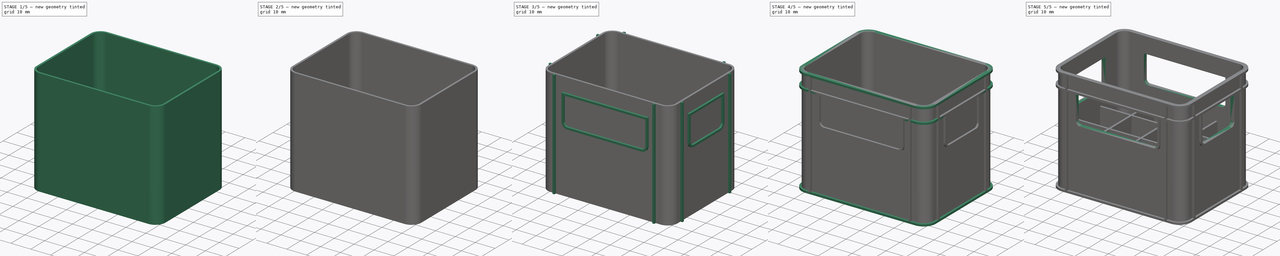
[diagram: build sequence overview — one tinted view per stage of 5, left to right]
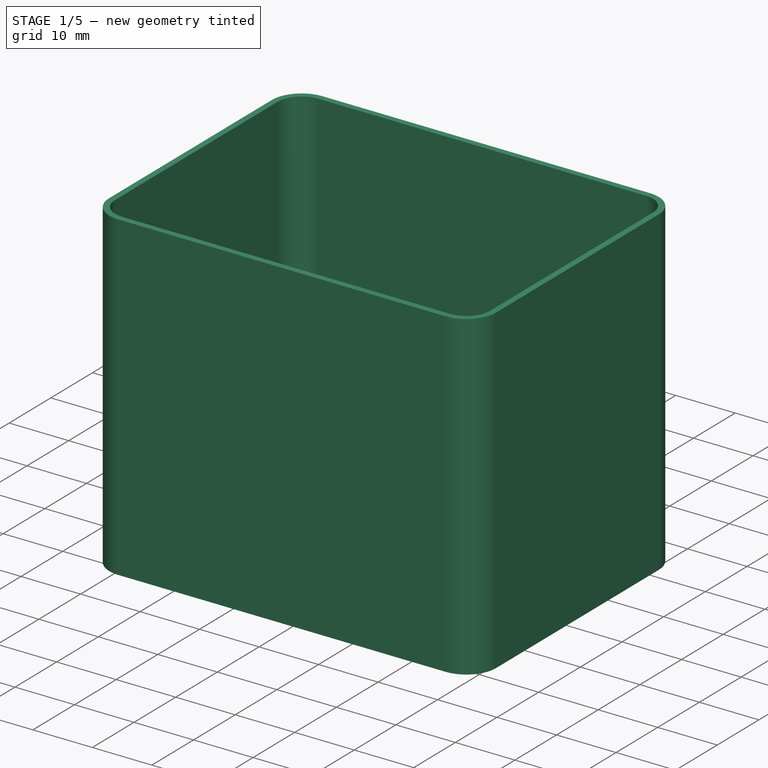
[diagram: stage 1 of 5 — iso view after this stage's code; geometry added in this stage tinted green]
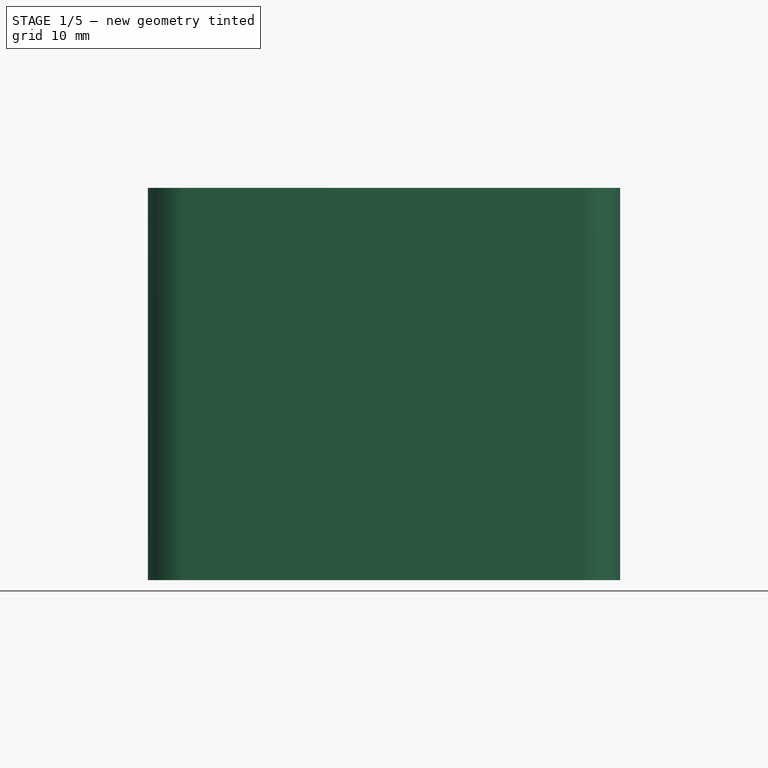
[diagram: stage 1 of 5 — front view after this stage's code; geometry added in this stage tinted green]
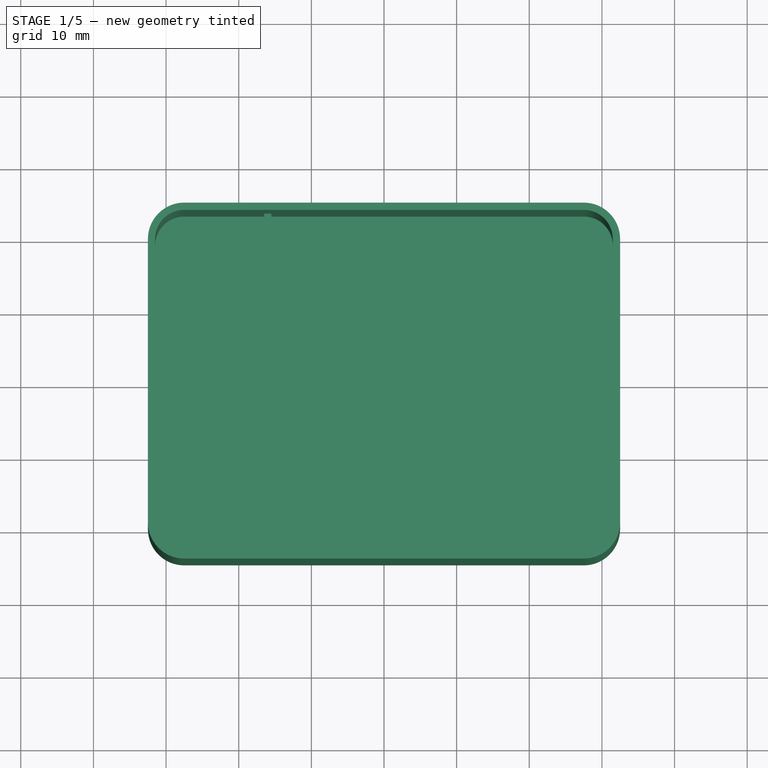
[diagram: stage 1 of 5 — top view after this stage's code; geometry added in this stage tinted green]
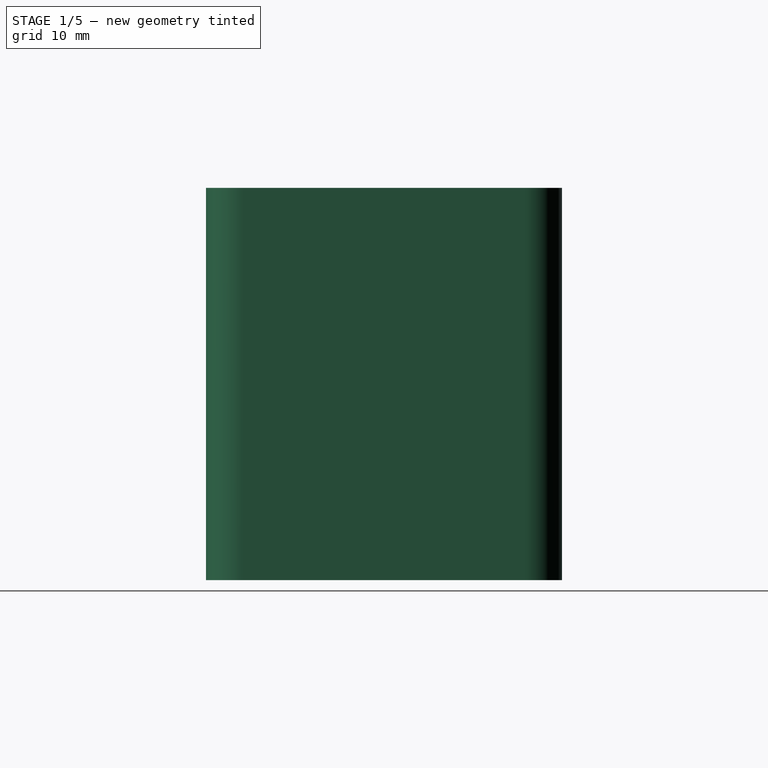
[diagram: stage 1 of 5 — right view after this stage's code; geometry added in this stage tinted green]
FCSTD DOCUMENT  (FreeCAD 0.20R25552 +3 (Git))
Label: AA-Kiste
License: All rights reserved
LicenseURL: http://en.wikipedia.org/wiki/All_rights_reserved
objects: Sketcher::SketchObject×9, PartDesign::Pad×7, PartDesign::LinearPattern×4, PartDesign::Mirrored×2, PartDesign::Pocket×2, PartDesign::Thickness×1, PartDesign::Body×1, Spreadsheet::Sheet×1
note: 36 computed .brp shape members not serialized (recipe doc carries the construction recipe); baked Part::Feature solids carry a one-line shape summary decoded from their .brp

FEATURE [Sketcher::SketchObject] Sketch  label="Sk Master"
  FullyConstrained = true
  MapMode = 5
  Support = -> [XY_Plane]
  sketch-geometry (12):
    g0: LineSegment StartX=-27.5 StartY=-24.5 StartZ=0 EndX=27.5 EndY=-24.5 EndZ=0
    g1: LineSegment StartX=32.5 StartY=-19.5 StartZ=0 EndX=32.5 EndY=19.5 EndZ=0
    g2: LineSegment StartX=27.5 StartY=24.5 StartZ=0 EndX=-27.5 EndY=24.5 EndZ=0
    g3: LineSegment StartX=-32.5 StartY=19.5 StartZ=0 EndX=-32.5 EndY=-19.5 EndZ=0
    g4: ArcOfCircle CenterX=-27.5 CenterY=19.5 CenterZ=0 NormalX=0 NormalY=0 NormalZ=1 AngleXU=0 Radius=5 StartAngle=1.5708 EndAngle=3.14159
    g5: GeomPoint X=-32.5 Y=24.5 Z=0
    g6: ArcOfCircle CenterX=27.5 CenterY=19.5 CenterZ=0 NormalX=0 NormalY=0 NormalZ=1 AngleXU=0 Radius=5 StartAngle=3e-16 EndAngle=1.5708
    g7: GeomPoint X=32.5 Y=24.5 Z=0
    g8: ArcOfCircle CenterX=27.5 CenterY=-19.5 CenterZ=0 NormalX=0 NormalY=0 NormalZ=1 AngleXU=0 Radius=5 StartAngle=4.71239 EndAngle=6.28319
    g9: GeomPoint X=32.5 Y=-24.5 Z=0
    g10: ArcOfCircle CenterX=-27.5 CenterY=-19.5 CenterZ=0 NormalX=0 NormalY=0 NormalZ=1 AngleXU=0 Radius=5 StartAngle=3.14159 EndAngle=4.71239
    g11: GeomPoint X=-32.5 Y=-24.5 Z=0
  constraints (27):
    c: Horizontal(g0)
    c: Horizontal(g2)
    c: Vertical(g1)
    c: Vertical(g3)
    c: PointOnObject(g5,g2)
    c: PointOnObject(g5,g3)
    c: Tangent(g2,g4) = -1.5708
    c: Tangent(g3,g4) = -1.5708
    c: PointOnObject(g7,g1)
    c: PointOnObject(g7,g2)
    c: Tangent(g1,g6) = -1.5708
    c: Tangent(g2,g6) = -1.5708
    c: PointOnObject(g9,g0)
    c: PointOnObject(g9,g1)
    c: Tangent(g0,g8) = -1.5708
    c: Tangent(g1,g8) = -1.5708
    c: PointOnObject(g11,g0)
    c: PointOnObject(g11,g3)
    c: Tangent(g0,g10) = -1.5708
    c: Tangent(g3,g10) = -1.5708
    c: Equal(g10,g4)
    c: Equal(g4,g6)
    c: Equal(g6,g8)
    c: Radius(g6) = 5
    c: Symmetric(g10,g6,g-1)
    c: DistanceX(g11,g9) = 65  'width'
    c: DistanceY(g11,g5) = 49  'depth'
FEATURE [PartDesign::Pad] Pad
  Direction = (0,0,1)
  Length = 54
  Length2 = 100
  Profile = -> Sketch
  Refine = true
  Type = 0
FEATURE [PartDesign::Thickness] Thickness
  Base = -> Pad [Face10]
  BaseFeature = -> Pad
  Intersection = false
  Join = 0
  Mode = 0
  Refine = true
  Reversed = true
  SupportTransform = false
  Value = 1
FEATURE [Sketcher::SketchObject] Sketch001  label="Sk Wand y"
  ExternalGeometry = -> [Sketch]
  FullyConstrained = true
  MapMode = 5
  Support = -> [XY_Plane]
  expr: Constraints[8] = <<Sk Master>>.Constraints.depth
  expr: Constraints[10] = <<Parameter>>.offset_x
  sketch-geometry (4):
    g0: LineSegment StartX=-16.5 StartY=24.5 StartZ=0 EndX=-15.5 EndY=24.5 EndZ=0
    g1: LineSegment StartX=-15.5 StartY=24.5 StartZ=0 EndX=-15.5 EndY=-24.5 EndZ=0
    g2: LineSegment StartX=-15.5 StartY=-24.5 StartZ=0 EndX=-16.5 EndY=-24.5 EndZ=0
    g3: LineSegment StartX=-16.5 StartY=-24.5 StartZ=0 EndX=-16.5 EndY=24.5 EndZ=0
  constraints (11):
    c: Coincident(g0,g1)
    c: Coincident(g1,g2)
    c: Coincident(g2,g3)
    c: Coincident(g3,g0)
    c: Horizontal(g0)
    c: Horizontal(g2)
    c: Vertical(g3)
    c: DistanceX(g2,g2) = 1
    c: DistanceY(g3,g3) = 49
    c: Symmetric(g0,g1,g-1)
    c: DistanceX(g-4,g2) = 16
FEATURE [PartDesign::Pad] Pad001  label="Wand y"
  BaseFeature = -> Thickness
  Direction = (0,0,1)
  Length = 25
  Length2 = 100
  Profile = -> Sketch001
  Refine = true
  Type = 0
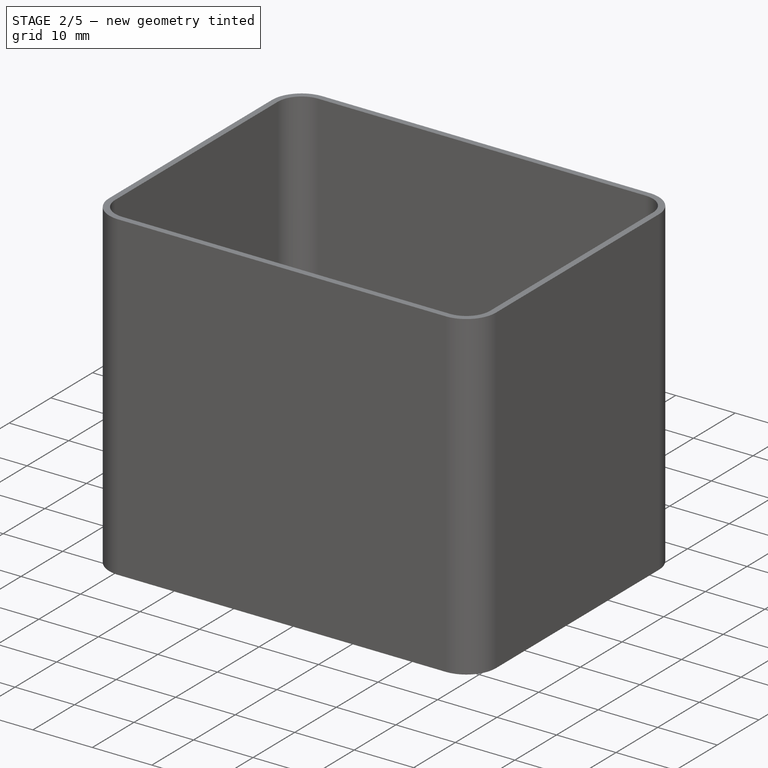
[diagram: stage 2 of 5 — iso view after this stage's code; geometry added in this stage tinted green]
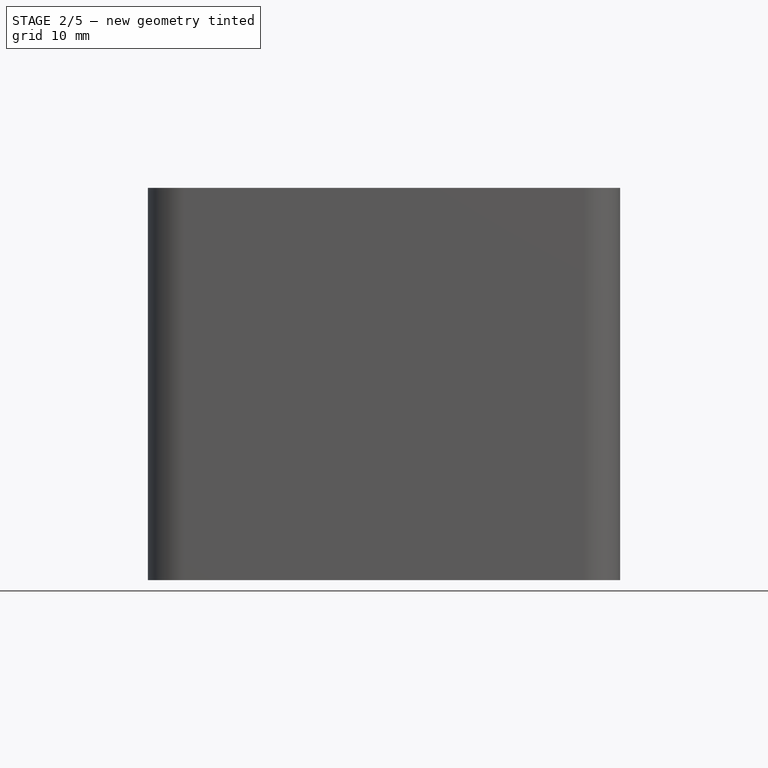
[diagram: stage 2 of 5 — front view after this stage's code; geometry added in this stage tinted green]
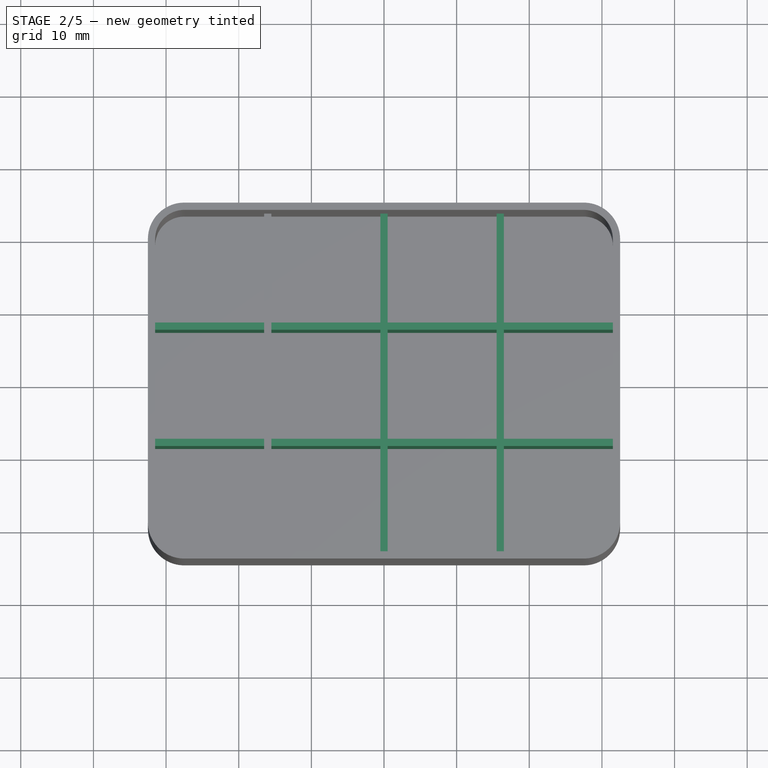
[diagram: stage 2 of 5 — top view after this stage's code; geometry added in this stage tinted green]
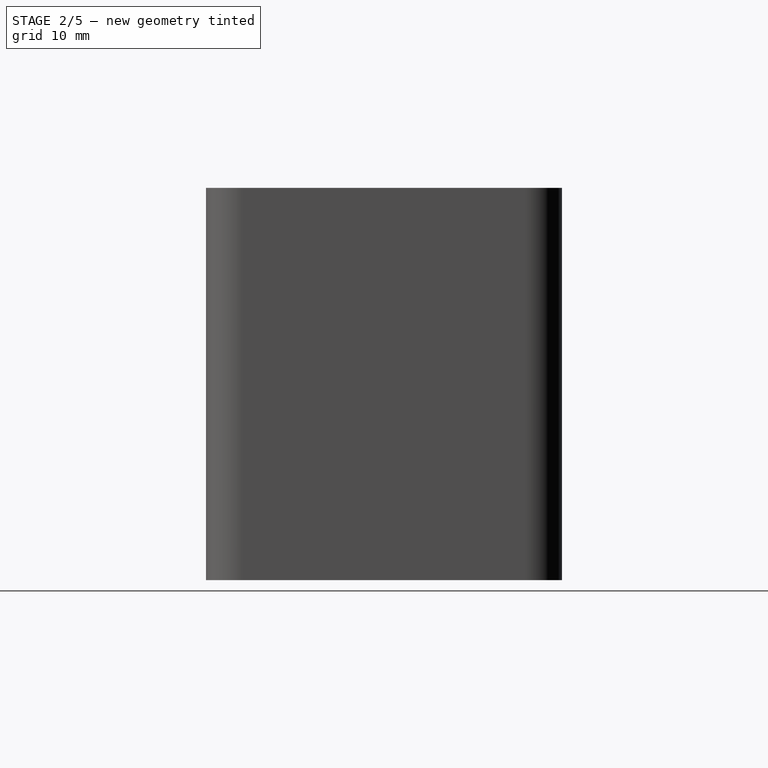
[diagram: stage 2 of 5 — right view after this stage's code; geometry added in this stage tinted green]
FEATURE [PartDesign::LinearPattern] LinearPattern
  BaseFeature = -> Pad001
  Direction = -> Sketch001 [H_Axis]
  Length = 32
  Occurrences = 3
  Originals = -> [Pad001]
  Overlap = 0
  Refine = true
  expr: Length = <<Parameter>>.offset_x * (<<Parameter>>.num_x - 2)
  expr: Occurrences = <<Parameter>>.num_x - 1
FEATURE [Sketcher::SketchObject] Sketch002  label="Sk Wand x"
  ExternalGeometry = -> [Sketch]
  FullyConstrained = true
  MapMode = 5
  Support = -> [XY_Plane]
  expr: Constraints[7] = Sketch.Constraints.width
  expr: Constraints[9] = <<Parameter>>.offset_y
  sketch-geometry (4):
    g0: LineSegment StartX=-32.5 StartY=-7.5 StartZ=0 EndX=32.5 EndY=-7.5 EndZ=0
    g1: LineSegment StartX=32.5 StartY=-7.5 StartZ=0 EndX=32.5 EndY=-8.5 EndZ=0
    g2: LineSegment StartX=32.5 StartY=-8.5 StartZ=0 EndX=-32.5 EndY=-8.5 EndZ=0
    g3: LineSegment StartX=-32.5 StartY=-8.5 StartZ=0 EndX=-32.5 EndY=-7.5 EndZ=0
  constraints (11):
    c: Coincident(g0,g1)
    c: Coincident(g1,g2)
    c: Coincident(g2,g3)
    c: Coincident(g3,g0)
    c: Horizontal(g2)
    c: Vertical(g1)
    c: Vertical(g3)
    c: DistanceX(g2,g2) = 65
    c: DistanceY(g1,g1) = 1
    c: DistanceY(g-3,g2) = 16
    c: Symmetric(g0,g0,g-2)
FEATURE [PartDesign::Pad] Pad002  label="Wand x"
  BaseFeature = -> LinearPattern
  Direction = (0,0,1)
  Length = 25
  Length2 = 100
  Profile = -> Sketch002
  Refine = true
  Type = 0
  expr: Length = <<Wand y>>.Length
FEATURE [PartDesign::LinearPattern] LinearPattern001
  BaseFeature = -> Pad002
  Direction = -> Y_Axis
  Length = 16
  Occurrences = 2
  Originals = -> [Pad002]
  Overlap = 0
  Refine = true
  expr: Length = <<Parameter>>.offset_y * (<<Parameter>>.num_y - 2)
  expr: Occurrences = <<Parameter>>.num_y - 1
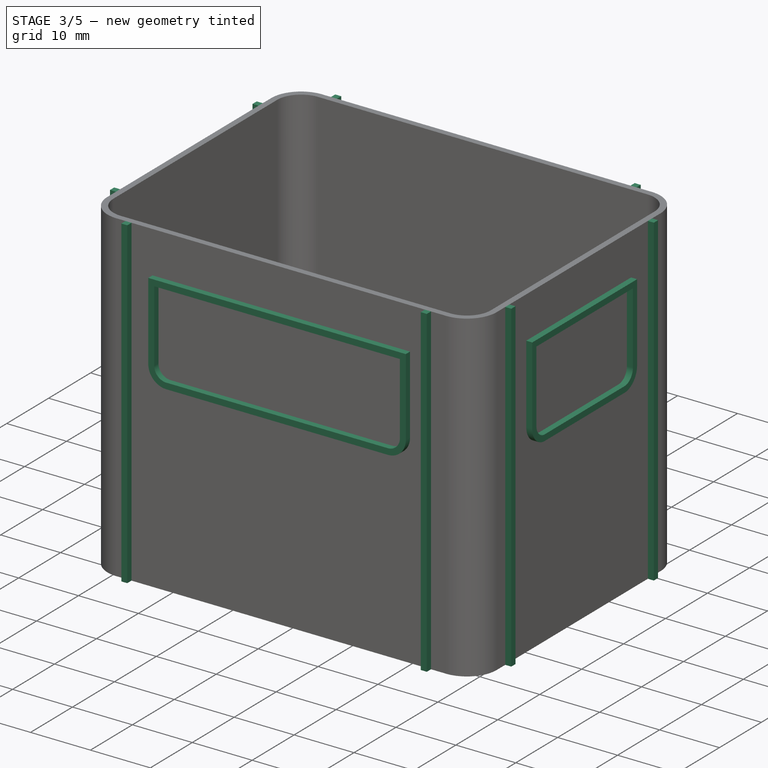
[diagram: stage 3 of 5 — iso view after this stage's code; geometry added in this stage tinted green]
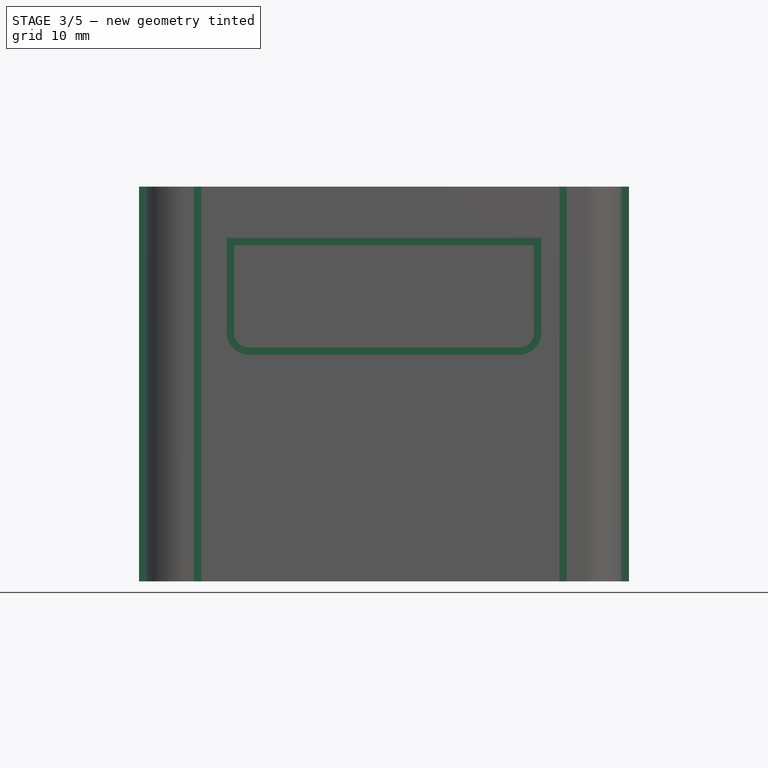
[diagram: stage 3 of 5 — front view after this stage's code; geometry added in this stage tinted green]
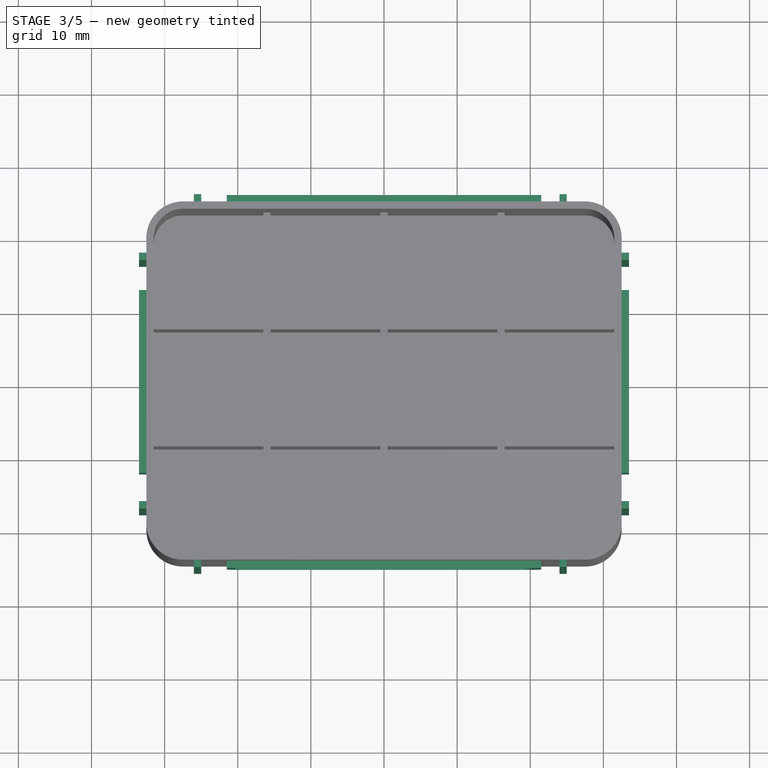
[diagram: stage 3 of 5 — top view after this stage's code; geometry added in this stage tinted green]
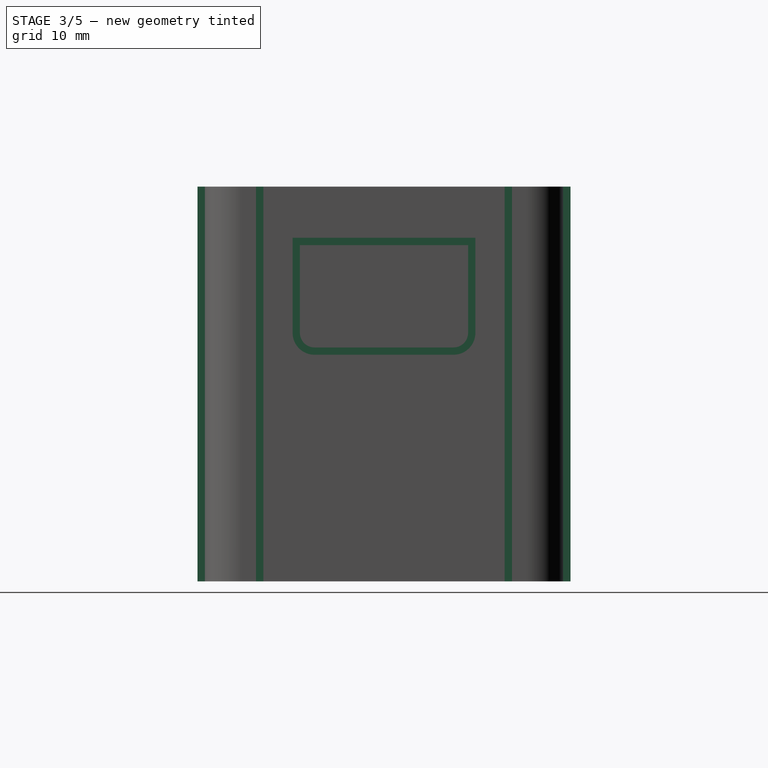
[diagram: stage 3 of 5 — right view after this stage's code; geometry added in this stage tinted green]
FEATURE [Sketcher::SketchObject] Sketch003  label="Sk Deko breite"
  FullyConstrained = true
  MapMode = 5
  Placement = pos=(0,-24.5,0) rot=(1,0,0;1.5708rad)
  Support = -> [Pad]
  expr: Constraints[20] = <<Pad>>.Length
  expr: Constraints[22] = <<Parameter>>.width - 14mm
  expr: .Constraints.width = <<Parameter>>.width - 14mm - 10mm
  sketch-geometry (20):
    g0: LineSegment StartX=-26 StartY=54 StartZ=0 EndX=-25 EndY=54 EndZ=0
    g1: LineSegment StartX=-25 StartY=54 StartZ=0 EndX=-25 EndY=0 EndZ=0
    g2: LineSegment StartX=-25 StartY=0 StartZ=0 EndX=-26 EndY=0 EndZ=0
    g3: LineSegment StartX=-26 StartY=0 StartZ=0 EndX=-26 EndY=54 EndZ=0
    g4: LineSegment StartX=25 StartY=54 StartZ=0 EndX=24 EndY=54 EndZ=0
    g5: LineSegment StartX=24 StartY=54 StartZ=0 EndX=24 EndY=0 EndZ=0
    g6: LineSegment StartX=24 StartY=0 StartZ=0 EndX=25 EndY=0 EndZ=0
    g7: LineSegment StartX=25 StartY=0 StartZ=0 EndX=25 EndY=54 EndZ=0
    g8: LineSegment StartX=-21.5 StartY=47 StartZ=0 EndX=21.5 EndY=47 EndZ=0
    g9: LineSegment StartX=21.5 StartY=47 StartZ=0 EndX=21.5 EndY=34 EndZ=0
    g10: LineSegment StartX=18.5 StartY=31 StartZ=0 EndX=-18.5 EndY=31 EndZ=0
    g11: LineSegment StartX=-21.5 StartY=34 StartZ=0 EndX=-21.5 EndY=47 EndZ=0
    g12: LineSegment StartX=-20.5 StartY=46 StartZ=0 EndX=20.5 EndY=46 EndZ=0
    g13: LineSegment StartX=20.5 StartY=46 StartZ=0 EndX=20.5 EndY=34 EndZ=0
    g14: LineSegment StartX=18.5 StartY=32 StartZ=0 EndX=-18.5 EndY=32 EndZ=0
    g15: LineSegment StartX=-20.5 StartY=34 StartZ=0 EndX=-20.5 EndY=46 EndZ=0
    g16: ArcOfCircle CenterX=-18.5 CenterY=34 CenterZ=0 NormalX=0 NormalY=0 NormalZ=1 AngleXU=0 Radius=2 StartAngle=3.14159 EndAngle=4.71239
    g17: ArcOfCircle CenterX=-18.5 CenterY=34 CenterZ=0 NormalX=0 NormalY=0 NormalZ=1 AngleXU=0 Radius=3 StartAngle=3.14159 EndAngle=4.71239
    g18: ArcOfCircle CenterX=18.5 CenterY=34 CenterZ=0 NormalX=0 NormalY=0 NormalZ=1 AngleXU=0 Radius=2 StartAngle=4.71239 EndAngle=6.28319
    g19: ArcOfCircle CenterX=18.5 CenterY=34 CenterZ=0 NormalX=0 NormalY=0 NormalZ=1 AngleXU=0 Radius=3 StartAngle=4.71239 EndAngle=6.28319
  constraints (52):
    c: Coincident(g0,g1)
    c: Coincident(g1,g2)
    c: Coincident(g2,g3)
    c: Coincident(g3,g0)
    c: Horizontal(g0)
    c: Horizontal(g2)
    c: Vertical(g1)
    c: Vertical(g3)
    c: PointOnObject(g1,g-1)
    c: Coincident(g4,g5)
    c: Coincident(g5,g6)
    c: Coincident(g6,g7)
    c: Coincident(g7,g4)
    c: Horizontal(g4)
    c: Horizontal(g6)
    c: Vertical(g5)
    c: Vertical(g7)
    c: Symmetric(g1,g6,g-1)
    c: Equal(g6,g2)
    c: DistanceX(g2,g2) = 1
    c: DistanceY(g3,g3) = 54
    c: Equal(g1,g7)
    c: DistanceX(g2,g6) = 51
    c: Horizontal(g8)
    c: Horizontal(g10)
    c: Vertical(g9)
    c: Vertical(g11)
    c: Horizontal(g12)
    c: Vertical(g13)
    c: Tangent(g14,g16) = 1.5708
    c: Tangent(g15,g16) = 1.5708
    c: Tangent(g10,g17) = 1.5708
    c: Tangent(g11,g17) = 1.5708
    c: Tangent(g13,g18) = 1.5708
    c: Tangent(g14,g18) = 1.5708
    c: Tangent(g9,g19) = 1.5708
    c: Tangent(g10,g19) = 1.5708
    c: Coincident(g18,g19)
    c: Coincident(g16,g17)
    c: Equal(g18,g16)
    c: Radius(g16) = 2
    c: DistanceX(g11,g15) = 1
    c: DistanceY(g14,g12) = 14  'height'
    c: DistanceX(g15,g13) = 41  'width'
    c: Symmetric(g14,g14,g-2)
    c: DistanceY(g-1,g12) = 46  'upper'
    c: Coincident(g15,g12)
    c: Vertical(g15)
    c: Coincident(g11,g8)
    c: Coincident(g12,g13)
    c: Coincident(g8,g9)
    c: DistanceY(g12,g8) = 1
FEATURE [PartDesign::Pad] Pad003  label="Deko breite"
  BaseFeature = -> LinearPattern001
  Direction = (0,-1,2e-16)
  Length = 1
  Length2 = 100
  Profile = -> Sketch003
  Refine = true
  Type = 0
FEATURE [Sketcher::SketchObject] Sketch004  label="Sk Deko tiefe"
  FullyConstrained = true
  MapMode = 5
  Placement = pos=(32.5,0,0) rot=(0.57735,0.57735,0.57735;2.0944rad)
  Support = -> [Pad]
  expr: Constraints[20] = <<Pad>>.Length
  expr: Constraints[41] = <<Sk Deko breite>>.Constraints.height
  expr: Constraints[22] = <<Parameter>>.depth - 14mm
  expr: Constraints[44] = Sketch003.Constraints.upper
  expr: Constraints[42] = <<Parameter>>.depth - 14mm - 10mm
  sketch-geometry (20):
    g0: LineSegment StartX=-17.5 StartY=54 StartZ=0 EndX=-16.5 EndY=54 EndZ=0
    g1: LineSegment StartX=-16.5 StartY=54 StartZ=0 EndX=-16.5 EndY=0 EndZ=0
    g2: LineSegment StartX=-16.5 StartY=0 StartZ=0 EndX=-17.5 EndY=0 EndZ=0
    g3: LineSegment StartX=-17.5 StartY=0 StartZ=0 EndX=-17.5 EndY=54 EndZ=0
    g4: LineSegment StartX=16.5 StartY=0 StartZ=0 EndX=17.5 EndY=0 EndZ=0
    g5: LineSegment StartX=17.5 StartY=0 StartZ=0 EndX=17.5 EndY=54 EndZ=0
    g6: LineSegment StartX=17.5 StartY=54 StartZ=0 EndX=16.5 EndY=54 EndZ=0
    g7: LineSegment StartX=16.5 StartY=54 StartZ=0 EndX=16.5 EndY=0 EndZ=0
    g8: LineSegment StartX=-12.5 StartY=47 StartZ=0 EndX=12.5 EndY=47 EndZ=0
    g9: LineSegment StartX=12.5 StartY=47 StartZ=0 EndX=12.5 EndY=34 EndZ=0
    g10: LineSegment StartX=9.5 StartY=31 StartZ=0 EndX=-9.5 EndY=31 EndZ=0
    g11: LineSegment StartX=-12.5 StartY=34 StartZ=0 EndX=-12.5 EndY=47 EndZ=0
    g12: LineSegment StartX=-11.5 StartY=46 StartZ=0 EndX=11.5 EndY=46 EndZ=0
    g13: LineSegment StartX=11.5 StartY=46 StartZ=0 EndX=11.5 EndY=34 EndZ=0
    g14: LineSegment StartX=9.5 StartY=32 StartZ=0 EndX=-9.5 EndY=32 EndZ=0
    g15: LineSegment StartX=-11.5 StartY=34 StartZ=0 EndX=-11.5 EndY=46 EndZ=0
    g16: ArcOfCircle CenterX=-9.5 CenterY=34 CenterZ=0 NormalX=0 NormalY=0 NormalZ=1 AngleXU=0 Radius=3 StartAngle=3.14159 EndAngle=4.71239
    g17: ArcOfCircle CenterX=-9.5 CenterY=34 CenterZ=0 NormalX=0 NormalY=0 NormalZ=1 AngleXU=0 Radius=2 StartAngle=3.14159 EndAngle=4.71239
    g18: ArcOfCircle CenterX=9.5 CenterY=34 CenterZ=0 NormalX=0 NormalY=0 NormalZ=1 AngleXU=0 Radius=2 StartAngle=4.71239 EndAngle=6.28319
    g19: ArcOfCircle CenterX=9.5 CenterY=34 CenterZ=0 NormalX=0 NormalY=0 NormalZ=1 AngleXU=0 Radius=3 StartAngle=4.71239 EndAngle=6.28319
  constraints (52):
    c: Coincident(g0,g1)
    c: Coincident(g1,g2)
    c: Coincident(g2,g3)
    c: Coincident(g3,g0)
    c: Horizontal(g0)
    c: Horizontal(g2)
    c: Vertical(g1)
    c: Vertical(g3)
    c: PointOnObject(g1,g-1)
    c: Coincident(g4,g5)
    c: Coincident(g5,g6)
    c: Coincident(g6,g7)
    c: Coincident(g7,g4)
    c: Horizontal(g4)
    c: Horizontal(g6)
    c: Vertical(g5)
    c: Vertical(g7)
    c: Symmetric(g1,g4,g-1)
    c: Equal(g2,g4)
    c: DistanceX(g2,g2) = 1
    c: DistanceY(g3,g3) = 54
    c: Equal(g3,g7)
    c: DistanceX(g2,g4) = 35
    c: Horizontal(g8)
    c: Vertical(g9)
    c: Vertical(g11)
    c: Horizontal(g12)
    c: Horizontal(g14)
    c: Vertical(g13)
    c: Tangent(g10,g16) = 1.5708
    c: Tangent(g11,g16) = 1.5708
    c: Tangent(g14,g17) = 1.5708
    c: Tangent(g15,g17) = 1.5708
    c: Tangent(g13,g18) = 1.5708
    c: Tangent(g14,g18) = 1.5708
    c: Tangent(g9,g19) = 1.5708
    c: Tangent(g10,g19) = 1.5708
    c: Coincident(g17,g16)
    c: Coincident(g19,g18)
    c: DistanceX(g11,g15) = 1
    c: Radius(g17) = 2
    c: DistanceY(g14,g12) = 14
    c: DistanceX(g11,g9) = 25
    c: Symmetric(g10,g10,g-2)
    c: DistanceY(g-1,g12) = 46
    c: Coincident(g11,g8)
    c: Coincident(g8,g9)
    c: Coincident(g15,g12)
    c: Vertical(g15)
    c: Coincident(g12,g13)
    c: Equal(g17,g18)
    c: DistanceY(g12,g8) = 1
FEATURE [PartDesign::Mirrored] Mirrored001
  BaseFeature = -> Pad003
  MirrorPlane = -> XZ_Plane
  Originals = -> [Pad003]
  Overlap = 0
  Refine = true
FEATURE [PartDesign::Pad] Pad004  label="Deko tiefe"
  BaseFeature = -> Mirrored001
  Direction = (1,0,0)
  Length = 1
  Length2 = 100
  Profile = -> Sketch004
  Refine = true
  Type = 0
FEATURE [PartDesign::Mirrored] Mirrored
  BaseFeature = -> Pad004
  MirrorPlane = -> YZ_Plane
  Originals = -> [Pad004]
  Overlap = 0
  Refine = true
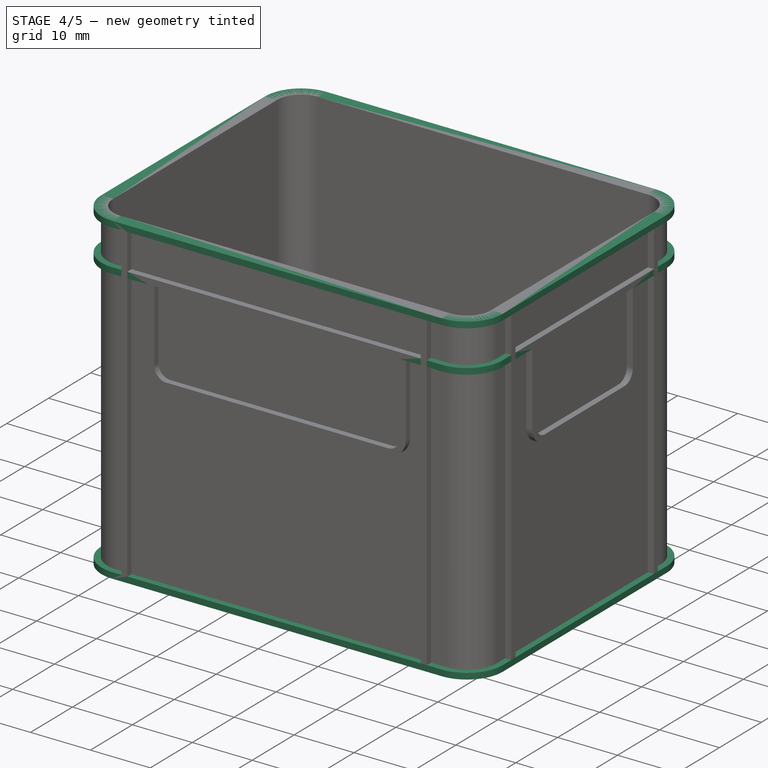
[diagram: stage 4 of 5 — iso view after this stage's code; geometry added in this stage tinted green]
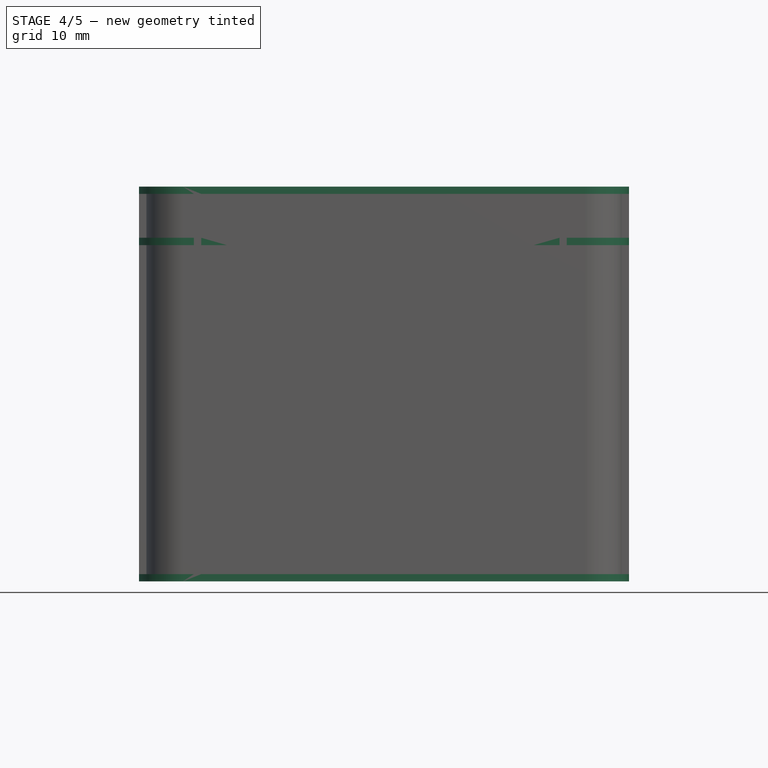
[diagram: stage 4 of 5 — front view after this stage's code; geometry added in this stage tinted green]
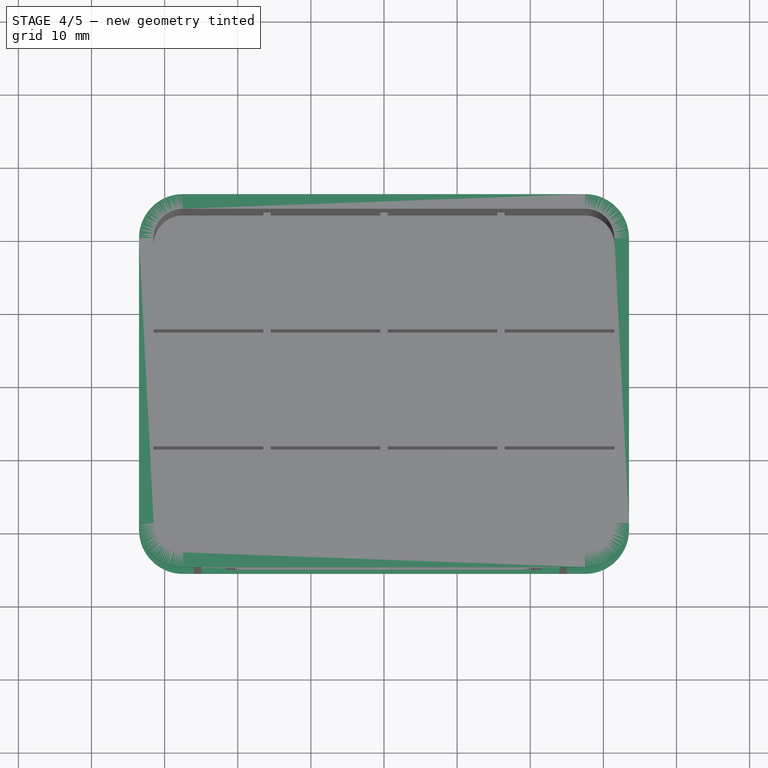
[diagram: stage 4 of 5 — top view after this stage's code; geometry added in this stage tinted green]
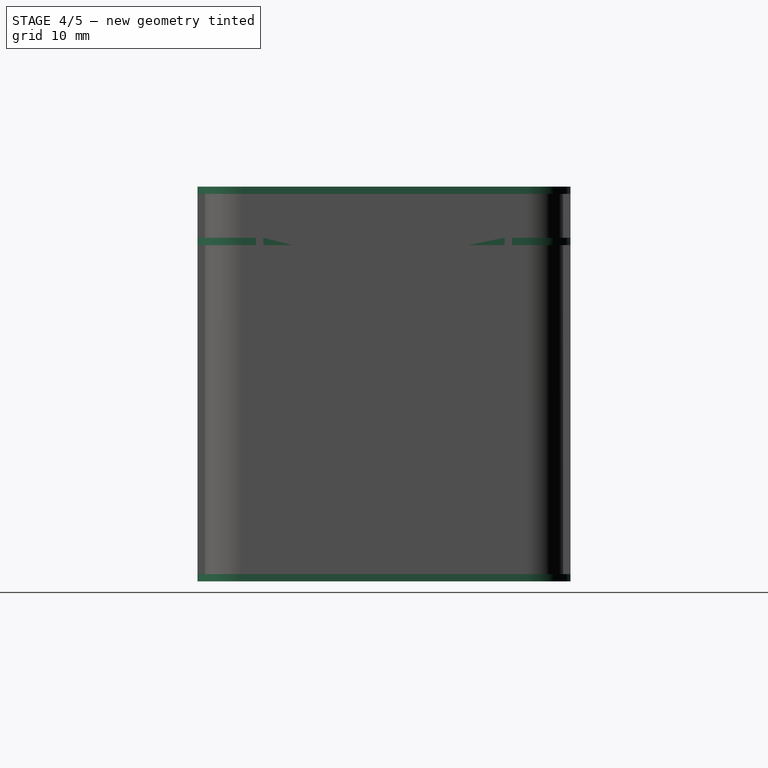
[diagram: stage 4 of 5 — right view after this stage's code; geometry added in this stage tinted green]
FEATURE [Sketcher::SketchObject] Sketch005  label="Sk RIng unten"
  ExternalGeometry = -> [Sketch]
  FullyConstrained = true
  MapMode = 5
  Support = -> [XY_Plane]
  expr: Constraints[39] = Sketch.Constraints[23]
  expr: .Constraints.width = Sketch.Constraints[25]
  expr: .Constraints.depth = Sketch.Constraints[26]
  sketch-geometry (20):
    g0: LineSegment StartX=-27.5 StartY=25.5 StartZ=0 EndX=27.5 EndY=25.5 EndZ=0
    g1: LineSegment StartX=33.5 StartY=19.5 StartZ=0 EndX=33.5 EndY=-19.5 EndZ=0
    g2: LineSegment StartX=27.5 StartY=-25.5 StartZ=0 EndX=-27.5 EndY=-25.5 EndZ=0
    g3: LineSegment StartX=-33.5 StartY=-19.5 StartZ=0 EndX=-33.5 EndY=19.5 EndZ=0
    g4: ArcOfCircle CenterX=-27.5 CenterY=19.5 CenterZ=0 NormalX=0 NormalY=0 NormalZ=1 AngleXU=0 Radius=6 StartAngle=1.5708 EndAngle=3.14159
    g5: ArcOfCircle CenterX=-27.5 CenterY=-19.5 CenterZ=0 NormalX=0 NormalY=0 NormalZ=1 AngleXU=0 Radius=6 StartAngle=3.14159 EndAngle=4.71239
    g6: ArcOfCircle CenterX=27.5 CenterY=-19.5 CenterZ=0 NormalX=0 NormalY=0 NormalZ=1 AngleXU=0 Radius=6 StartAngle=4.71239 EndAngle=6.28319
    g7: ArcOfCircle CenterX=27.5 CenterY=19.5 CenterZ=0 NormalX=0 NormalY=0 NormalZ=1 AngleXU=0 Radius=6 StartAngle=0 EndAngle=1.5708
    g8: LineSegment StartX=-27.5 StartY=-24.5 StartZ=0 EndX=27.5 EndY=-24.5 EndZ=0
    g9: LineSegment StartX=32.5 StartY=-19.5 StartZ=0 EndX=32.5 EndY=19.5 EndZ=0
    g10: LineSegment StartX=27.5 StartY=24.5 StartZ=0 EndX=-27.5 EndY=24.5 EndZ=0
    g11: LineSegment StartX=-32.5 StartY=19.5 StartZ=0 EndX=-32.5 EndY=-19.5 EndZ=0
    g12: ArcOfCircle CenterX=-27.5 CenterY=19.5 CenterZ=0 NormalX=0 NormalY=0 NormalZ=1 AngleXU=0 Radius=5 StartAngle=1.5708 EndAngle=3.14159
    g13: GeomPoint X=-32.5 Y=24.5 Z=0
    g14: ArcOfCircle CenterX=27.5 CenterY=19.5 CenterZ=0 NormalX=0 NormalY=0 NormalZ=1 AngleXU=0 Radius=5 StartAngle=1e-15 EndAngle=1.5708
    g15: GeomPoint X=32.5 Y=24.5 Z=0
    g16: ArcOfCircle CenterX=27.5 CenterY=-19.5 CenterZ=0 NormalX=0 NormalY=0 NormalZ=1 AngleXU=0 Radius=5 StartAngle=4.71239 EndAngle=6.28319
    g17: GeomPoint X=32.5 Y=-24.5 Z=0
    g18: ArcOfCircle CenterX=-27.5 CenterY=-19.5 CenterZ=0 NormalX=0 NormalY=0 NormalZ=1 AngleXU=0 Radius=5 StartAngle=3.14159 EndAngle=4.71239
    g19: GeomPoint X=-32.5 Y=-24.5 Z=0
  constraints (43):
    c: Horizontal(g0)
    c: Horizontal(g2)
    c: Vertical(g1)
    c: Tangent(g0,g4) = 1.5708
    c: Tangent(g3,g4) = 1.5708
    c: Tangent(g2,g5) = 1.5708
    c: Tangent(g3,g5) = 1.5708
    c: Tangent(g1,g6) = 1.5708
    c: Tangent(g2,g6) = 1.5708
    c: Tangent(g0,g7) = 1.5708
    c: Tangent(g1,g7) = 1.5708
    c: Coincident(g5,g-6)
    c: Coincident(g4,g-3)
    c: Coincident(g7,g-4)
    c: Coincident(g6,g-5)
    c: DistanceX(g3,g-6) = 1
    c: Horizontal(g8)
    c: Horizontal(g10)
    c: Vertical(g9)
    c: Vertical(g11)
    c: PointOnObject(g13,g10)
    c: PointOnObject(g13,g11)
    c: Tangent(g10,g12) = -1.5708
    c: Tangent(g11,g12) = -1.5708
    c: PointOnObject(g15,g9)
    c: PointOnObject(g15,g10)
    c: Tangent(g9,g14) = -1.5708
    c: Tangent(g10,g14) = -1.5708
    c: PointOnObject(g17,g8)
    c: PointOnObject(g17,g9)
    c: Tangent(g8,g16) = -1.5708
    c: Tangent(g9,g16) = -1.5708
    c: PointOnObject(g19,g8)
    c: PointOnObject(g19,g11)
    c: Tangent(g8,g18) = -1.5708
    c: Tangent(g11,g18) = -1.5708
    c: Equal(g18,g12)
    c: Equal(g12,g14)
    c: Equal(g14,g16)
    c: Radius(g14) = 5
    c: Symmetric(g18,g14,g-1)
    c: DistanceX(g19,g17) = 65  'width'
    c: DistanceY(g19,g13) = 49  'depth'
FEATURE [PartDesign::Pad] Pad006  label=" Ring unten"
  BaseFeature = -> Mirrored
  Direction = (0,0,1)
  Length = 1
  Length2 = 100
  Profile = -> Sketch005
  Refine = true
  Type = 0
FEATURE [PartDesign::LinearPattern] LinearPattern002  label="Rink mitte"
  BaseFeature = -> Pad006
  Direction = -> Z_Axis
  Length = 46
  Occurrences = 2
  Originals = -> [Pad006]
  Overlap = 0
  Refine = true
  expr: Length = Sketch003.Constraints.upper
FEATURE [PartDesign::LinearPattern] LinearPattern003  label="Ring oben"
  BaseFeature = -> LinearPattern002
  Direction = -> Z_Axis
  Length = 53
  Occurrences = 2
  Originals = -> [Pad006]
  Overlap = 0
  Refine = true
  expr: Length = <<Pad>>.Length - 1mm
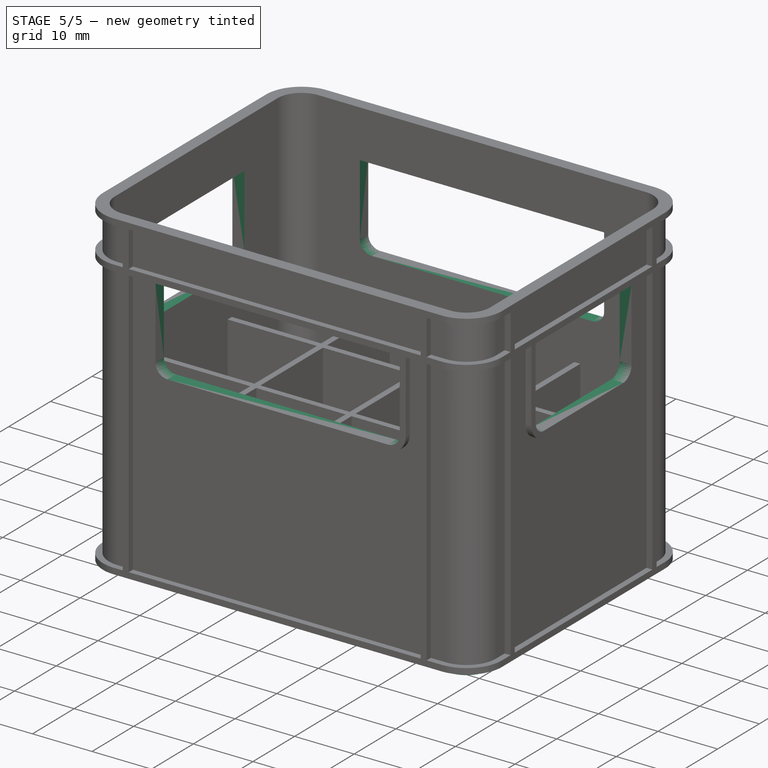
[diagram: stage 5 of 5 — iso view after this stage's code; geometry added in this stage tinted green]
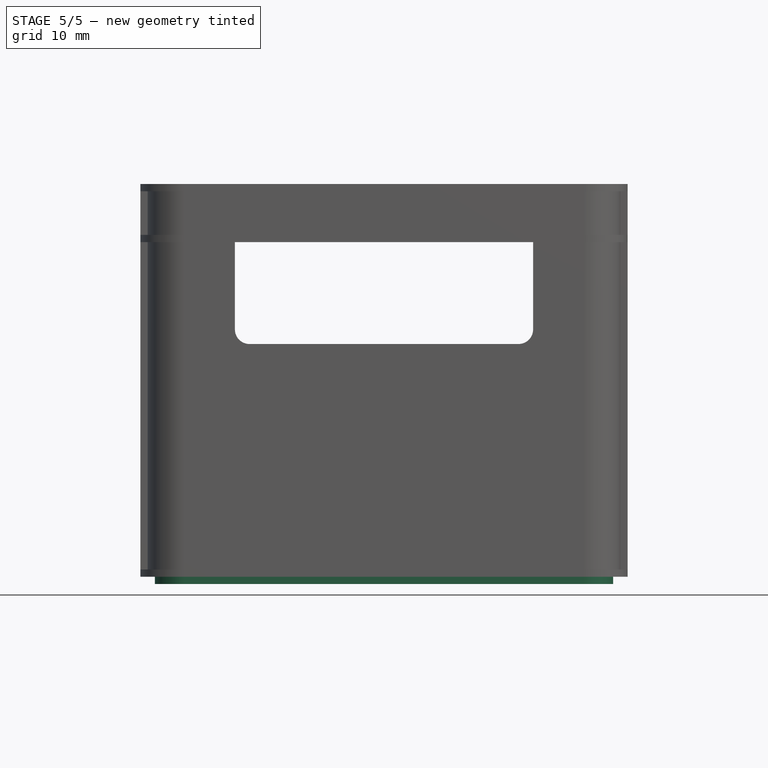
[diagram: stage 5 of 5 — front view after this stage's code; geometry added in this stage tinted green]
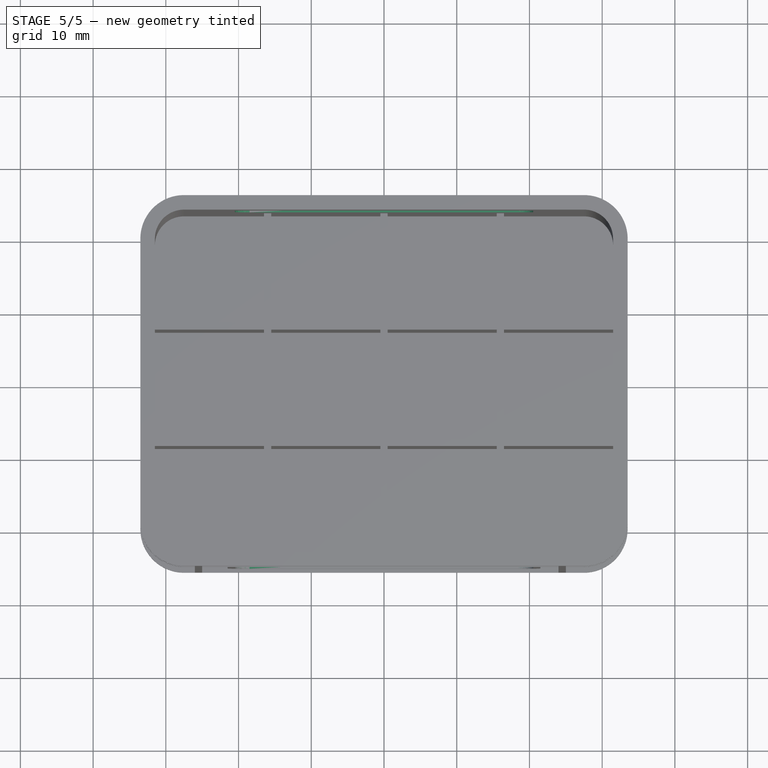
[diagram: stage 5 of 5 — top view after this stage's code; geometry added in this stage tinted green]
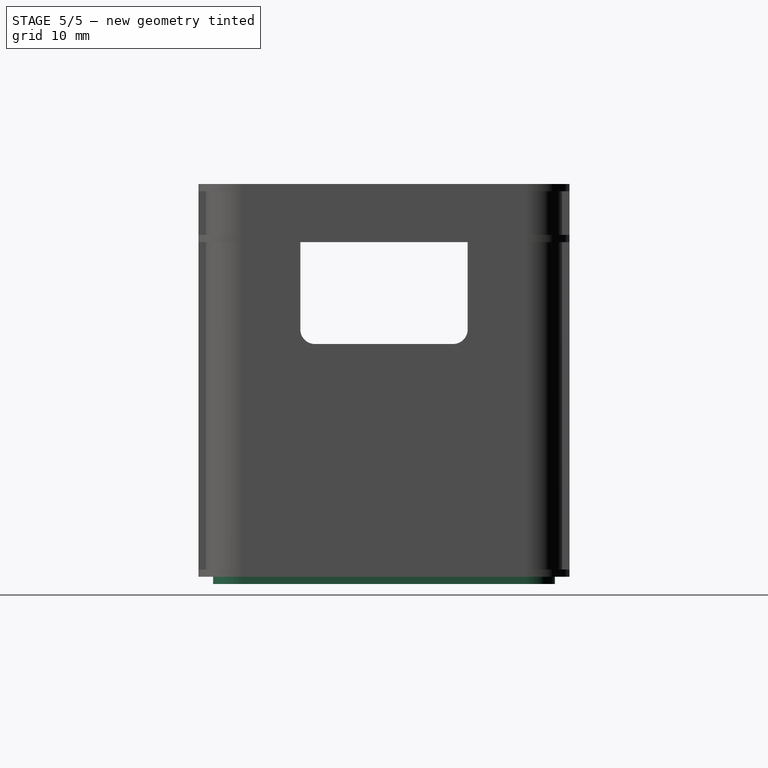
[diagram: stage 5 of 5 — right view after this stage's code; geometry added in this stage tinted green]
FEATURE [Sketcher::SketchObject] Sketch006  label="Sk Loch breite"
  ExternalGeometry = -> [Sketch003]
  FullyConstrained = true
  MapMode = 5
  Placement = pos=(0,-24.5,0) rot=(1,0,0;1.5708rad)
  Support = -> [Pad]
  expr: Constraints[19] = Sketch003.Constraints[19]
  expr: .Constraints.width = Sketch003.Constraints[43]
  expr: Constraints[20] = Sketch003.Constraints[20]
  expr: Constraints[22] = Sketch003.Constraints[22]
  expr: Constraints[41] = Sketch003.Constraints[41]
  expr: Constraints[40] = Sketch003.Constraints[40]
  expr: .Constraints.height = Sketch003.Constraints[42]
  expr: .Constraints.upper = Sketch003.Constraints[45]
  expr: Constraints[51] = Sketch003.Constraints[51]
  sketch-geometry (20):
    g0: LineSegment StartX=-26 StartY=54 StartZ=0 EndX=-25 EndY=54 EndZ=0
    g1: LineSegment StartX=-25 StartY=54 StartZ=0 EndX=-25 EndY=0 EndZ=0
    g2: LineSegment StartX=-25 StartY=0 StartZ=0 EndX=-26 EndY=0 EndZ=0
    g3: LineSegment StartX=-26 StartY=0 StartZ=0 EndX=-26 EndY=54 EndZ=0
    g4: LineSegment StartX=25 StartY=54 StartZ=0 EndX=24 EndY=54 EndZ=0
    g5: LineSegment StartX=24 StartY=54 StartZ=0 EndX=24 EndY=0 EndZ=0
    g6: LineSegment StartX=24 StartY=0 StartZ=0 EndX=25 EndY=0 EndZ=0
    g7: LineSegment StartX=25 StartY=0 StartZ=0 EndX=25 EndY=54 EndZ=0
    g8: LineSegment StartX=-21.5 StartY=47 StartZ=0 EndX=21.5 EndY=47 EndZ=0
    g9: LineSegment StartX=21.5 StartY=47 StartZ=0 EndX=21.5 EndY=34 EndZ=0
    g10: LineSegment StartX=18.5 StartY=31 StartZ=0 EndX=-18.5 EndY=31 EndZ=0
    g11: LineSegment StartX=-21.5 StartY=34 StartZ=0 EndX=-21.5 EndY=47 EndZ=0
    g12: LineSegment StartX=-20.5 StartY=46 StartZ=0 EndX=20.5 EndY=46 EndZ=0
    g13: LineSegment StartX=20.5 StartY=46 StartZ=0 EndX=20.5 EndY=34 EndZ=0
    g14: LineSegment StartX=18.5 StartY=32 StartZ=0 EndX=-18.5 EndY=32 EndZ=0
    g15: LineSegment StartX=-20.5 StartY=34 StartZ=0 EndX=-20.5 EndY=46 EndZ=0
    g16: ArcOfCircle CenterX=-18.5 CenterY=34 CenterZ=0 NormalX=0 NormalY=0 NormalZ=1 AngleXU=0 Radius=2 StartAngle=3.14159 EndAngle=4.71239
    g17: ArcOfCircle CenterX=-18.5 CenterY=34 CenterZ=0 NormalX=0 NormalY=0 NormalZ=1 AngleXU=0 Radius=3 StartAngle=3.14159 EndAngle=4.71239
    g18: ArcOfCircle CenterX=18.5 CenterY=34 CenterZ=0 NormalX=0 NormalY=0 NormalZ=1 AngleXU=0 Radius=2 StartAngle=4.71239 EndAngle=6.28319
    g19: ArcOfCircle CenterX=18.5 CenterY=34 CenterZ=0 NormalX=0 NormalY=0 NormalZ=1 AngleXU=0 Radius=3 StartAngle=4.71239 EndAngle=6.28319
  constraints (52):
    c: Coincident(g0,g1)
    c: Coincident(g1,g2)
    c: Coincident(g2,g3)
    c: Coincident(g3,g0)
    c: Horizontal(g0)
    c: Horizontal(g2)
    c: Vertical(g1)
    c: Vertical(g3)
    c: PointOnObject(g1,g-1)
    c: Coincident(g4,g5)
    c: Coincident(g5,g6)
    c: Coincident(g6,g7)
    c: Coincident(g7,g4)
    c: Horizontal(g4)
    c: Horizontal(g6)
    c: Vertical(g5)
    c: Vertical(g7)
    c: Symmetric(g1,g6,g-1)
    c: Equal(g6,g2)
    c: DistanceX(g2,g2) = 1
    c: DistanceY(g3,g3) = 54
    c: Equal(g1,g7)
    c: DistanceX(g2,g6) = 51
    c: Horizontal(g8)
    c: Horizontal(g10)
    c: Vertical(g9)
    c: Vertical(g11)
    c: Horizontal(g12)
    c: Vertical(g13)
    c: Tangent(g14,g16) = 1.5708
    c: Tangent(g15,g16) = 1.5708
    c: Tangent(g10,g17) = 1.5708
    c: Tangent(g11,g17) = 1.5708
    c: Tangent(g13,g18) = 1.5708
    c: Tangent(g14,g18) = 1.5708
    c: Tangent(g9,g19) = 1.5708
    c: Tangent(g10,g19) = 1.5708
    c: Coincident(g18,g19)
    c: Coincident(g16,g17)
    c: Equal(g18,g16)
    c: Radius(g16) = 2
    c: DistanceX(g11,g15) = 1
    c: DistanceY(g14,g12) = 14  'height'
    c: DistanceX(g15,g13) = 41  'width'
    c: Symmetric(g14,g14,g-2)
    c: DistanceY(g-1,g12) = 46  'upper'
    c: Coincident(g15,g12)
    c: Vertical(g15)
    c: Coincident(g11,g8)
    c: Coincident(g12,g13)
    c: Coincident(g8,g9)
    c: DistanceY(g12,g8) = 1
FEATURE [PartDesign::Pocket] Pocket  label="Loch breite"
  BaseFeature = -> LinearPattern003
  Length = 5
  Length2 = 100
  Outside = false
  Profile = -> Sketch006
  Refine = true
  Type = 1
FEATURE [Sketcher::SketchObject] Sketch007  label="Sk Loch tiefe"
  FullyConstrained = true
  MapMode = 5
  Placement = pos=(32.5,0,0) rot=(0.57735,0.57735,0.57735;2.0944rad)
  Support = -> [Pad]
  expr: Constraints[19] = Sketch004.Constraints[19]
  expr: Constraints[20] = Sketch004.Constraints[20]
  expr: Constraints[22] = Sketch004.Constraints[22]
  expr: Constraints[41] = Sketch004.Constraints[41]
  expr: Constraints[39] = Sketch004.Constraints[39]
  expr: Constraints[40] = Sketch004.Constraints[40]
  expr: Constraints[42] = Sketch004.Constraints[42]
  expr: Constraints[44] = Sketch004.Constraints[44]
  expr: Constraints[51] = Sketch004.Constraints[51]
  sketch-geometry (20):
    g0: LineSegment StartX=-17.5 StartY=54 StartZ=0 EndX=-16.5 EndY=54 EndZ=0
    g1: LineSegment StartX=-16.5 StartY=54 StartZ=0 EndX=-16.5 EndY=0 EndZ=0
    g2: LineSegment StartX=-16.5 StartY=0 StartZ=0 EndX=-17.5 EndY=0 EndZ=0
    g3: LineSegment StartX=-17.5 StartY=0 StartZ=0 EndX=-17.5 EndY=54 EndZ=0
    g4: LineSegment StartX=16.5 StartY=0 StartZ=0 EndX=17.5 EndY=0 EndZ=0
    g5: LineSegment StartX=17.5 StartY=0 StartZ=0 EndX=17.5 EndY=54 EndZ=0
    g6: LineSegment StartX=17.5 StartY=54 StartZ=0 EndX=16.5 EndY=54 EndZ=0
    g7: LineSegment StartX=16.5 StartY=54 StartZ=0 EndX=16.5 EndY=0 EndZ=0
    g8: LineSegment StartX=-12.5 StartY=47 StartZ=0 EndX=12.5 EndY=47 EndZ=0
    g9: LineSegment StartX=12.5 StartY=47 StartZ=0 EndX=12.5 EndY=34 EndZ=0
    g10: LineSegment StartX=9.5 StartY=31 StartZ=0 EndX=-9.5 EndY=31 EndZ=0
    g11: LineSegment StartX=-12.5 StartY=34 StartZ=0 EndX=-12.5 EndY=47 EndZ=0
    g12: LineSegment StartX=-11.5 StartY=46 StartZ=0 EndX=11.5 EndY=46 EndZ=0
    g13: LineSegment StartX=11.5 StartY=46 StartZ=0 EndX=11.5 EndY=34 EndZ=0
    g14: LineSegment StartX=9.5 StartY=32 StartZ=0 EndX=-9.5 EndY=32 EndZ=0
    g15: LineSegment StartX=-11.5 StartY=34 StartZ=0 EndX=-11.5 EndY=46 EndZ=0
    g16: ArcOfCircle CenterX=-9.5 CenterY=34 CenterZ=0 NormalX=0 NormalY=0 NormalZ=1 AngleXU=0 Radius=3 StartAngle=3.14159 EndAngle=4.71239
    g17: ArcOfCircle CenterX=-9.5 CenterY=34 CenterZ=0 NormalX=0 NormalY=0 NormalZ=1 AngleXU=0 Radius=2 StartAngle=3.14159 EndAngle=4.71239
    g18: ArcOfCircle CenterX=9.5 CenterY=34 CenterZ=0 NormalX=0 NormalY=0 NormalZ=1 AngleXU=0 Radius=2 StartAngle=4.71239 EndAngle=6.28319
    g19: ArcOfCircle CenterX=9.5 CenterY=34 CenterZ=0 NormalX=0 NormalY=0 NormalZ=1 AngleXU=0 Radius=3 StartAngle=4.71239 EndAngle=6.28319
  constraints (52):
    c: Coincident(g0,g1)
    c: Coincident(g1,g2)
    c: Coincident(g2,g3)
    c: Coincident(g3,g0)
    c: Horizontal(g0)
    c: Horizontal(g2)
    c: Vertical(g1)
    c: Vertical(g3)
    c: PointOnObject(g1,g-1)
    c: Coincident(g4,g5)
    c: Coincident(g5,g6)
    c: Coincident(g6,g7)
    c: Coincident(g7,g4)
    c: Horizontal(g4)
    c: Horizontal(g6)
    c: Vertical(g5)
    c: Vertical(g7)
    c: Symmetric(g1,g4,g-1)
    c: Equal(g2,g4)
    c: DistanceX(g2,g2) = 1
    c: DistanceY(g3,g3) = 54
    c: Equal(g3,g7)
    c: DistanceX(g2,g4) = 35
    c: Horizontal(g8)
    c: Vertical(g9)
    c: Vertical(g11)
    c: Horizontal(g12)
    c: Horizontal(g14)
    c: Vertical(g13)
    c: Tangent(g10,g16) = 1.5708
    c: Tangent(g11,g16) = 1.5708
    c: Tangent(g14,g17) = 1.5708
    c: Tangent(g15,g17) = 1.5708
    c: Tangent(g13,g18) = 1.5708
    c: Tangent(g14,g18) = 1.5708
    c: Tangent(g9,g19) = 1.5708
    c: Tangent(g10,g19) = 1.5708
    c: Coincident(g17,g16)
    c: Coincident(g19,g18)
    c: DistanceX(g11,g15) = 1
    c: Radius(g17) = 2
    c: DistanceY(g14,g12) = 14
    c: DistanceX(g11,g9) = 25
    c: Symmetric(g10,g10,g-2)
    c: DistanceY(g-1,g12) = 46
    c: Coincident(g11,g8)
    c: Coincident(g8,g9)
    c: Coincident(g15,g12)
    c: Vertical(g15)
    c: Coincident(g12,g13)
    c: Equal(g17,g18)
    c: DistanceY(g12,g8) = 1
FEATURE [PartDesign::Pocket] Pocket001  label="Loch tiefe"
  BaseFeature = -> Pocket
  Length = 5
  Length2 = 100
  Outside = false
  Profile = -> Sketch007
  Refine = true
  Type = 1
FEATURE [Sketcher::SketchObject] Sketch008  label="Sk Bodenring"
  FullyConstrained = true
  MapMode = 5
  Support = -> [XY_Plane]
  expr: .Constraints.depth = Sketch.Constraints[26]
  expr: .Constraints.width = Sketch.Constraints[25]
  expr: Constraints[23] = Sketch.Constraints[23]
  sketch-geometry (28):
    g0: LineSegment StartX=-27.5 StartY=-24.5 StartZ=0 EndX=27.5 EndY=-24.5 EndZ=0
    g1: LineSegment StartX=32.5 StartY=-19.5 StartZ=0 EndX=32.5 EndY=19.5 EndZ=0
    g2: LineSegment StartX=27.5 StartY=24.5 StartZ=0 EndX=-27.5 EndY=24.5 EndZ=0
    g3: LineSegment StartX=-32.5 StartY=19.5 StartZ=0 EndX=-32.5 EndY=-19.5 EndZ=0
    g4: ArcOfCircle CenterX=-27.5 CenterY=19.5 CenterZ=0 NormalX=0 NormalY=0 NormalZ=1 AngleXU=0 Radius=5 StartAngle=1.5708 EndAngle=3.14159
    g5: GeomPoint X=-32.5 Y=24.5 Z=0
    g6: ArcOfCircle CenterX=27.5 CenterY=19.5 CenterZ=0 NormalX=0 NormalY=0 NormalZ=1 AngleXU=0 Radius=5 StartAngle=0 EndAngle=1.5708
    g7: GeomPoint X=32.5 Y=24.5 Z=0
    g8: ArcOfCircle CenterX=27.5 CenterY=-19.5 CenterZ=0 NormalX=0 NormalY=0 NormalZ=1 AngleXU=0 Radius=5 StartAngle=4.71239 EndAngle=6.28319
    g9: GeomPoint X=32.5 Y=-24.5 Z=0
    g10: ArcOfCircle CenterX=-27.5 CenterY=-19.5 CenterZ=0 NormalX=0 NormalY=0 NormalZ=1 AngleXU=0 Radius=5 StartAngle=3.14159 EndAngle=4.71239
    g11: GeomPoint X=-32.5 Y=-24.5 Z=0
    g12: LineSegment StartX=-27.5 StartY=23.5 StartZ=0 EndX=27.5 EndY=23.5 EndZ=0
    g13: LineSegment StartX=31.5 StartY=19.5 StartZ=0 EndX=31.5 EndY=-19.5 EndZ=0
    g14: LineSegment StartX=27.5 StartY=-23.5 StartZ=0 EndX=-27.5 EndY=-23.5 EndZ=0
    g15: LineSegment StartX=-31.5 StartY=-19.5 StartZ=0 EndX=-31.5 EndY=19.5 EndZ=0
    g16: ArcOfCircle CenterX=-27.5 CenterY=19.5 CenterZ=0 NormalX=0 NormalY=0 NormalZ=1 AngleXU=0 Radius=4 StartAngle=1.5708 EndAngle=3.14159
    g17: ArcOfCircle CenterX=27.5 CenterY=19.5 CenterZ=0 NormalX=0 NormalY=0 NormalZ=1 AngleXU=0 Radius=4 StartAngle=1e-16 EndAngle=1.5708
    g18: ArcOfCircle CenterX=27.5 CenterY=-19.5 CenterZ=0 NormalX=0 NormalY=0 NormalZ=1 AngleXU=0 Radius=4 StartAngle=4.71239 EndAngle=6.28319
    g19: ArcOfCircle CenterX=-27.5 CenterY=-19.5 CenterZ=0 NormalX=0 NormalY=0 NormalZ=1 AngleXU=0 Radius=4 StartAngle=3.14159 EndAngle=4.71239
    g20: LineSegment StartX=-27.5 StartY=22.5 StartZ=0 EndX=27.5 EndY=22.5 EndZ=0
    g21: LineSegment StartX=30.5 StartY=19.5 StartZ=0 EndX=30.5 EndY=-19.5 EndZ=0
    g22: LineSegment StartX=27.5 StartY=-22.5 StartZ=0 EndX=-27.5 EndY=-22.5 EndZ=0
    g23: LineSegment StartX=-30.5 StartY=-19.5 StartZ=0 EndX=-30.5 EndY=19.5 EndZ=0
    g24: ArcOfCircle CenterX=-27.5 CenterY=19.5 CenterZ=0 NormalX=0 NormalY=0 NormalZ=1 AngleXU=0 Radius=3 StartAngle=1.5708 EndAngle=3.14159
    g25: ArcOfCircle CenterX=27.5 CenterY=19.5 CenterZ=0 NormalX=0 NormalY=0 NormalZ=1 AngleXU=0 Radius=3 StartAngle=6.1e-15 EndAngle=1.5708
    g26: ArcOfCircle CenterX=27.5 CenterY=-19.5 CenterZ=0 NormalX=0 NormalY=0 NormalZ=1 AngleXU=0 Radius=3 StartAngle=4.71239 EndAngle=6.28319
    g27: ArcOfCircle CenterX=-27.5 CenterY=-19.5 CenterZ=0 NormalX=0 NormalY=0 NormalZ=1 AngleXU=0 Radius=3 StartAngle=3.14159 EndAngle=4.71239
  constraints (62):
    c: Horizontal(g0)
    c: Horizontal(g2)
    c: Vertical(g1)
    c: Vertical(g3)
    c: PointOnObject(g5,g2)
    c: PointOnObject(g5,g3)
    c: Tangent(g2,g4) = -1.5708
    c: Tangent(g3,g4) = -1.5708
    c: PointOnObject(g7,g1)
    c: PointOnObject(g7,g2)
    c: Tangent(g1,g6) = -1.5708
    c: Tangent(g2,g6) = -1.5708
    c: PointOnObject(g9,g0)
    c: PointOnObject(g9,g1)
    c: Tangent(g0,g8) = -1.5708
    c: Tangent(g1,g8) = -1.5708
    c: PointOnObject(g11,g0)
    c: PointOnObject(g11,g3)
    c: Tangent(g0,g10) = -1.5708
    c: Tangent(g3,g10) = -1.5708
    c: Equal(g10,g4)
    c: Equal(g4,g6)
    c: Equal(g6,g8)
    c: Radius(g6) = 5
    c: Symmetric(g10,g6,g-1)
    c: DistanceX(g11,g9) = 65  'width'
    c: DistanceY(g11,g5) = 49  'depth'
    c: Horizontal(g12)
    c: Horizontal(g14)
    c: Vertical(g13)
    c: Vertical(g15)
    c: Tangent(g12,g16) = 1.5708
    c: Tangent(g15,g16) = 1.5708
    c: Tangent(g12,g17) = 1.5708
    c: Tangent(g13,g17) = 1.5708
    c: Tangent(g13,g18) = 1.5708
    c: Tangent(g14,g18) = 1.5708
    c: Tangent(g14,g19) = 1.5708
    c: Tangent(g15,g19) = 1.5708
    c: Equal(g17,g18)
    c: Coincident(g16,g4)
    c: Coincident(g17,g6)
    c: Coincident(g19,g10)
    c: Radius(g16) = 4
    c: Horizontal(g20)
    c: Horizontal(g22)
    c: Vertical(g21)
    c: Vertical(g23)
    c: Tangent(g20,g24) = 1.5708
    c: Tangent(g23,g24) = 1.5708
    c: Tangent(g20,g25) = 1.5708
    c: Tangent(g21,g25) = 1.5708
    c: Tangent(g21,g26) = 1.5708
    c: Tangent(g22,g26) = 1.5708
    c: Tangent(g22,g27) = 1.5708
    c: Tangent(g23,g27) = 1.5708
    c: Radius(g24) = 3
    c: Coincident(g16,g24)
    c: Equal(g24,g27)
    c: Equal(g27,g26)
    c: Equal(g26,g25)
    c: Coincident(g26,g18)
FEATURE [PartDesign::Pad] Pad007  label="Bodenring"
  BaseFeature = -> Pocket001
  Direction = (0,0,1)
  Length = 1
  Length2 = 100
  Profile = -> Sketch008
  Refine = true
  Reversed = true
  Type = 0
FEATURE [PartDesign::Body] Body
  Group = -> [Sketch,Pad,Sketch003,Sketch004,Thickness,Sketch001,Pad001,LinearPattern,Sketch002,Pad002,LinearPattern001,Pad003,Mirrored001,Sketch005,Pad004,Mirrored,Pad006,LinearPattern002,LinearPattern003,Sketch006,Pocket,Sketch007,Pocket001,Sketch008,Pad007]
  Origin = -> Origin
  Tip = -> Pad007
FEATURE [Spreadsheet::Sheet] Spreadsheet  label="Parameter"
  cells = A1=Breite; B1(width)==<<AA-Kiste>>#<<Sk Master>>.Constraints.width; C1=Change here; A2=Tiefe; B2(depth)==<<AA-Kiste>>#<<Sk Master>>.Constraints.depth; A3=fächer Breite; B3(num_x)=4; A4=Fächer Tiefe; B4(num_y)=3; A5=walls; B5(wall)==1mm; A7=Offset_x; B7(offset_x)==(width - 1mm) / num_x; A8=Offset_y; B8(offset_y)==(depth - 1mm) / num_y
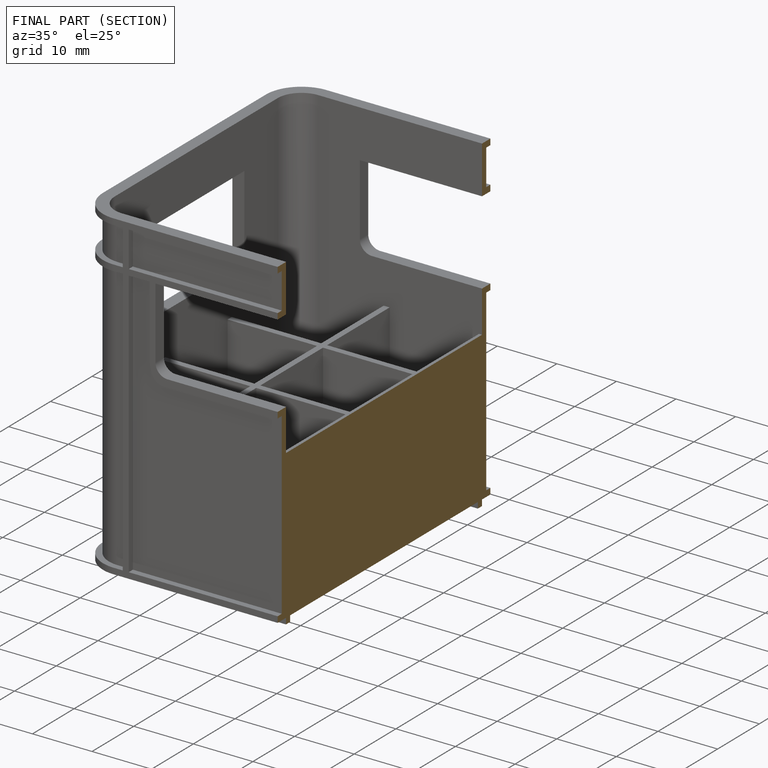
[diagram: finished part — half-section view (interior)]
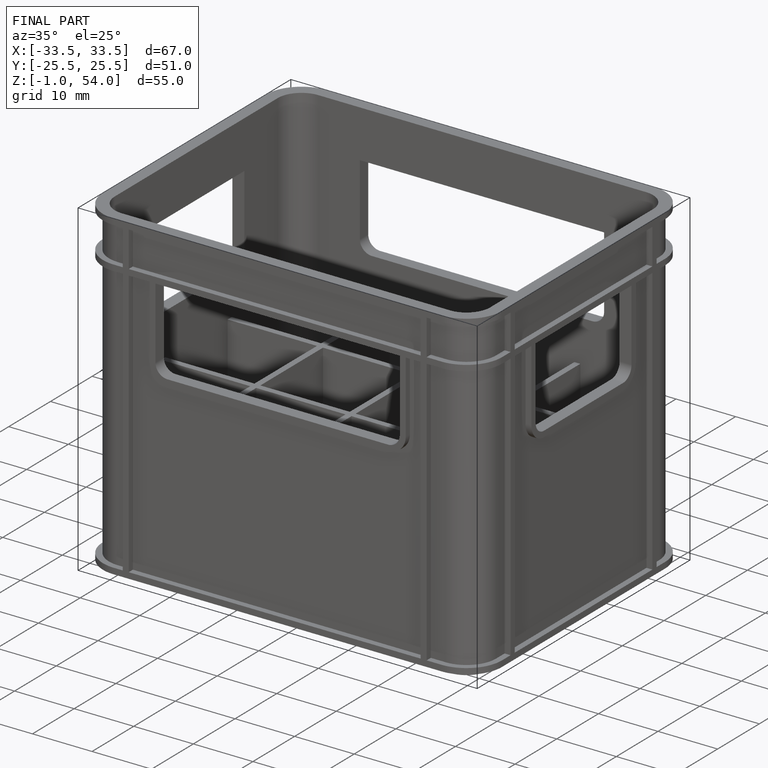
[diagram: finished part — iso view with bounding-box wireframe]
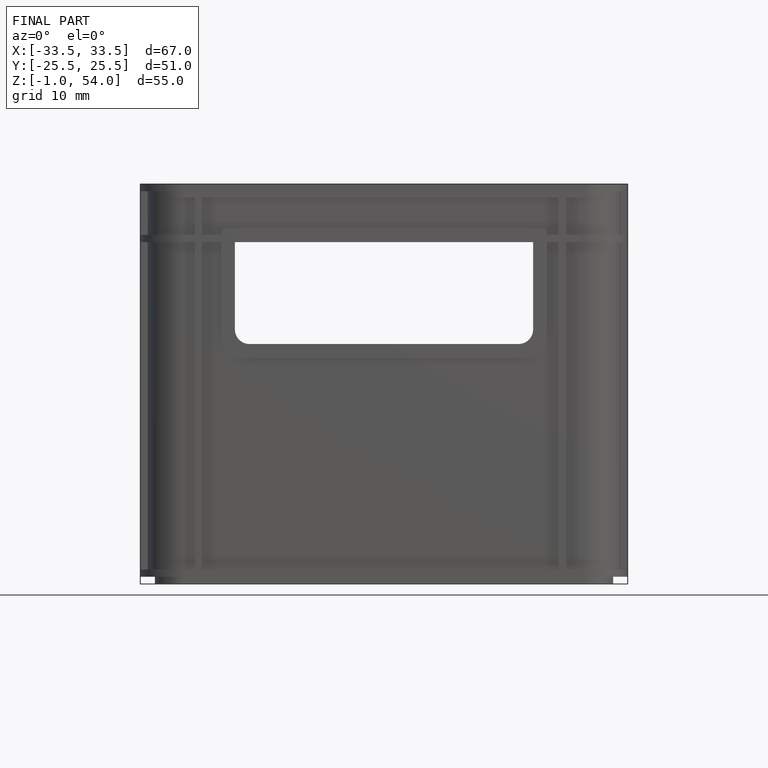
[diagram: finished part — front view with bounding-box wireframe]
